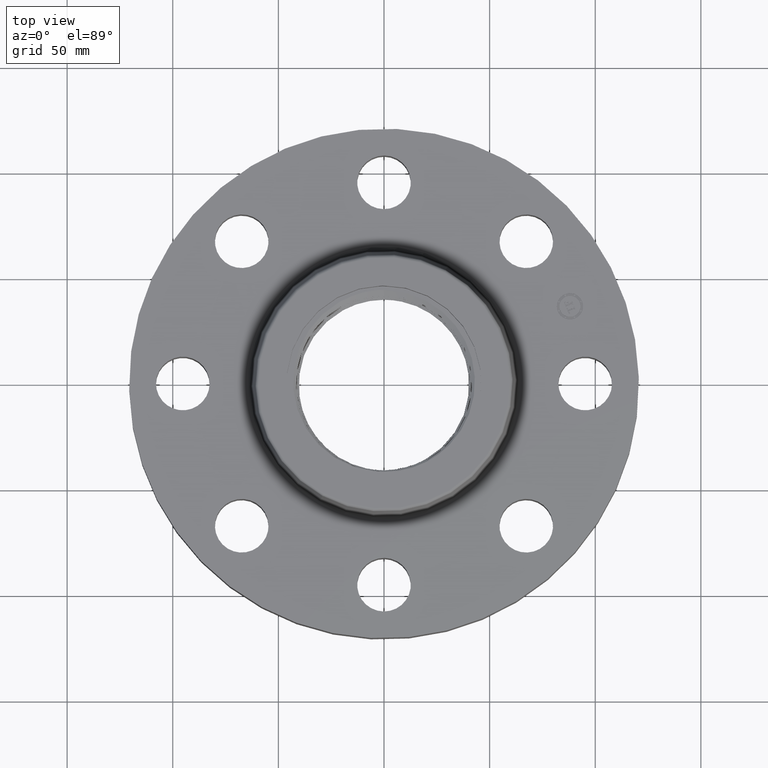
[diagram: clean part render]
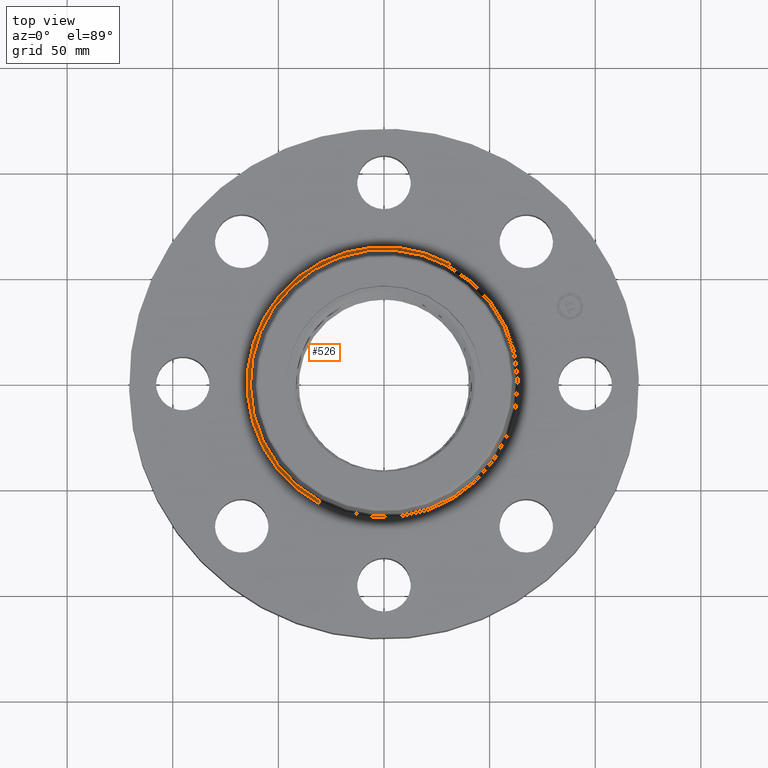
[diagram: same view with one face highlighted and labeled with its STEP entity id]
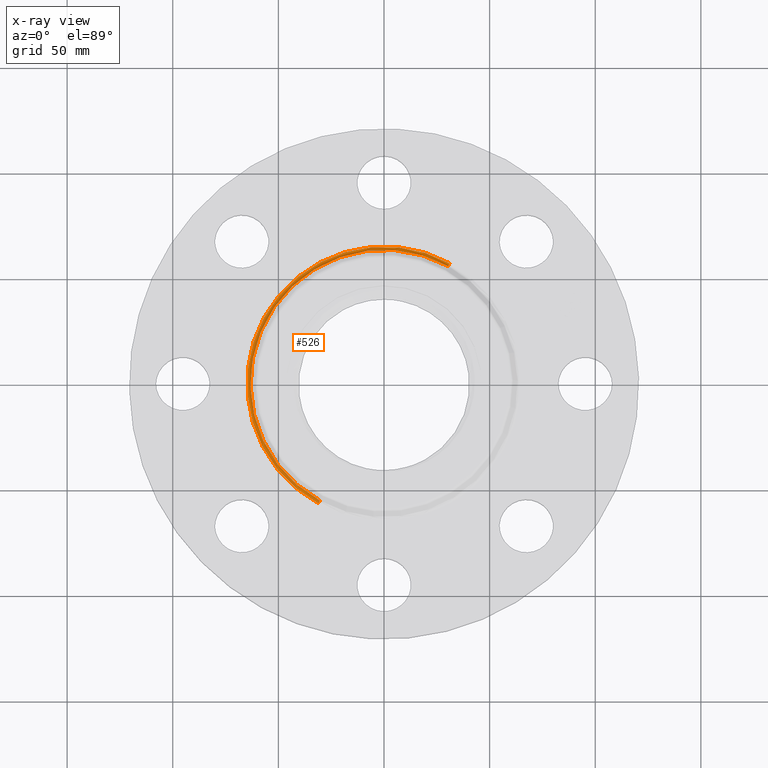
[diagram: x-ray of the same camera — body ghosted, the highlighted face saturated]
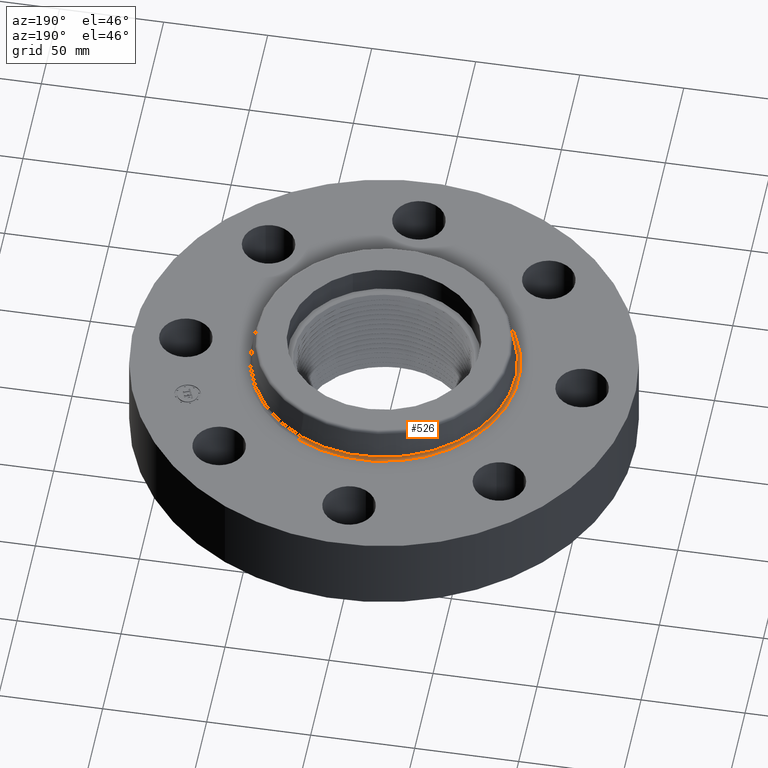
[diagram: same view with one face highlighted and labeled with its STEP entity id]
A machine part, top view. The second image highlights one B-rep face of the part: STEP entity #526.
The next image is the same camera in x-ray: the body ghosted, the highlighted face saturated — about 0% of this face is hidden behind the body in this view.
A second angle (auxiliary view) of the same face is appended — the face is thin or edge-on in the first view.
In plain terms, the highlighted toroidal blend (fillet) surface has major radius 64.7788 mm and minor (blend) radius 1.524 mm.
Its self-contained STEP definition (entity closure, byte-faithful):
#473=AXIS2_PLACEMENT_3D('Torus Axis2P3D',#470,#471,#472) ;
#486=AXIS2_PLACEMENT_3D('Circle Axis2P3D',#484,#485,$) ;
#500=AXIS2_PLACEMENT_3D('Circle Axis2P3D',#498,#499,$) ;
#512=AXIS2_PLACEMENT_3D('Circle Axis2P3D',#510,#511,$) ;
#517=AXIS2_PLACEMENT_3D('Circle Axis2P3D',#515,#516,$) ;
#470=CARTESIAN_POINT('Axis2P3D Location',(0.,0.,1.56000000001)) ;
#479=CARTESIAN_POINT('Vertex',(1.22270099407,2.23813915698,1.50000000001)) ;
#481=CARTESIAN_POINT('Vertex',(-1.22270099407,-2.23813915698,1.50000000001)) ;
#484=CARTESIAN_POINT('Axis2P3D Location',(1.22270099407,2.23813915698,1.56000000001)) ;
#488=CARTESIAN_POINT('Vertex',(1.19437247483,2.18628415032,1.54958110935)) ;
#495=CARTESIAN_POINT('Vertex',(-1.19437247483,-2.18628415032,1.54958110935)) ;
#498=CARTESIAN_POINT('Axis2P3D Location',(-1.22270099407,-2.23813915698,1.56000000001)) ;
#510=CARTESIAN_POINT('Axis2P3D Location',(0.,0.,1.50000000001)) ;
#515=CARTESIAN_POINT('Axis2P3D Location',(0.,0.,1.54958110935)) ;
#471=DIRECTION('Axis2P3D Direction',(0.,0.,-0.0393700787402)) ;
#472=DIRECTION('Axis2P3D XDirection',(-0.0188750212049,-0.0345504945626,0.)) ;
#485=DIRECTION('Axis2P3D Direction',(-0.0345504945626,0.0188750212049,0.)) ;
#499=DIRECTION('Axis2P3D Direction',(0.0345504945626,-0.0188750212049,0.)) ;
#511=DIRECTION('Axis2P3D Direction',(0.,0.,-0.0393700787402)) ;
#516=DIRECTION('Axis2P3D Direction',(0.,0.,-0.0393700787402)) ;
#521=ORIENTED_EDGE('',*,*,#514,.F.) ;
#522=ORIENTED_EDGE('',*,*,#502,.T.) ;
#523=ORIENTED_EDGE('',*,*,#519,.T.) ;
#524=ORIENTED_EDGE('',*,*,#490,.F.) ;
#526=ADVANCED_FACE('PartBody',(#525),#474,.F.) ;
#487=CIRCLE('generated circle',#486,0.0600000000002) ;
#501=CIRCLE('generated circle',#500,0.0600000000002) ;
#513=CIRCLE('generated circle',#512,2.55034597788) ;
#518=CIRCLE('generated circle',#517,2.4912575127) ;
#474=TOROIDAL_SURFACE('homeo Torus',#473,2.55034597788,0.0600000000002) ;
#490=EDGE_CURVE('',#480,#489,#487,.T.) ;
#502=EDGE_CURVE('',#482,#496,#501,.T.) ;
#514=EDGE_CURVE('',#482,#480,#513,.T.) ;
#519=EDGE_CURVE('',#496,#489,#518,.T.) ;
#520=EDGE_LOOP('',(#521,#522,#523,#524)) ;
#525=FACE_OUTER_BOUND('',#520,.T.) ;
#480=VERTEX_POINT('',#479) ;
#482=VERTEX_POINT('',#481) ;
#489=VERTEX_POINT('',#488) ;
#496=VERTEX_POINT('',#495) ;